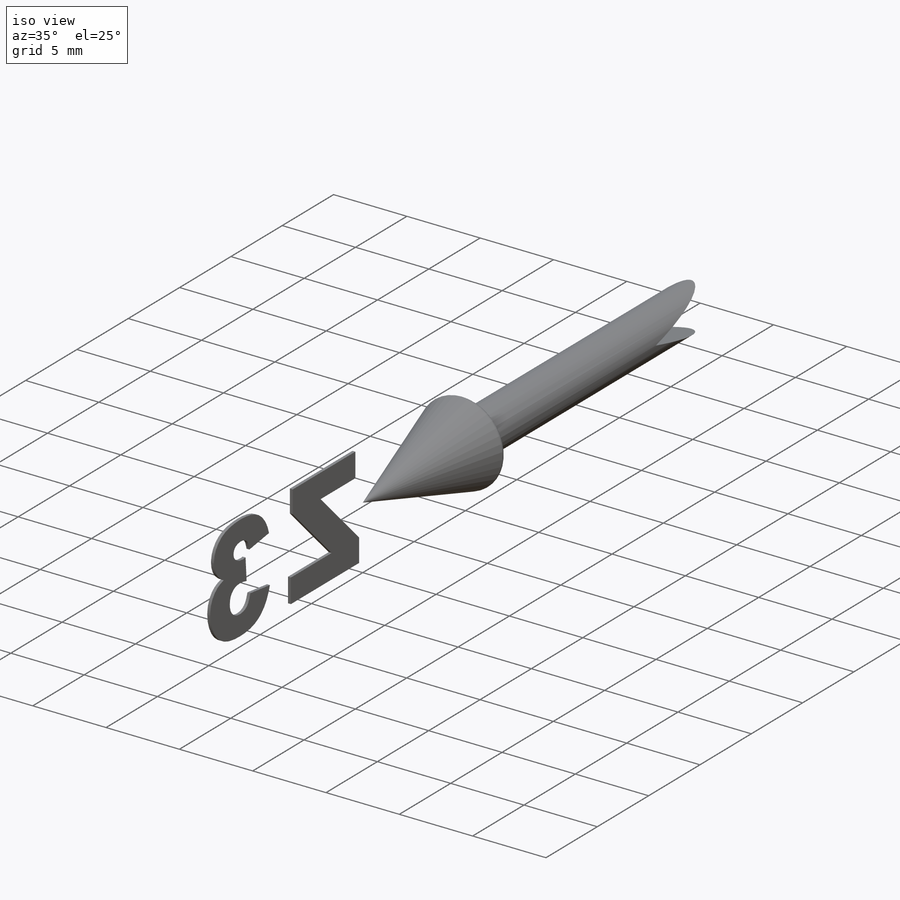
[diagram: iso view]
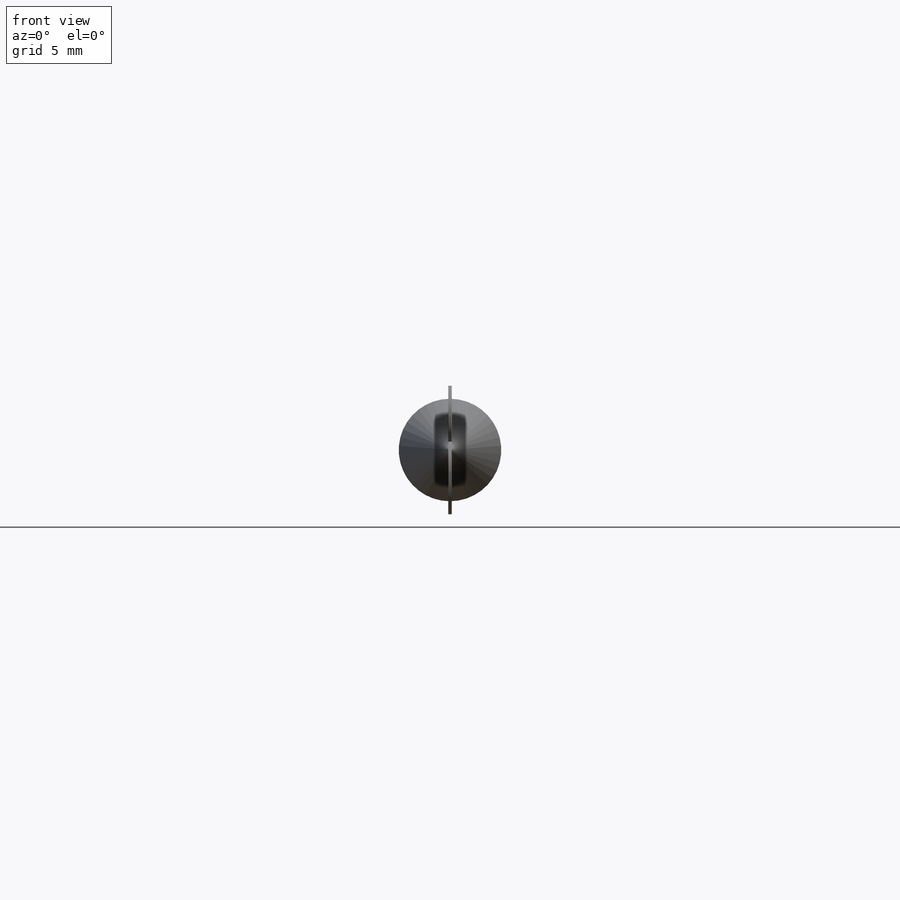
[diagram: front view]
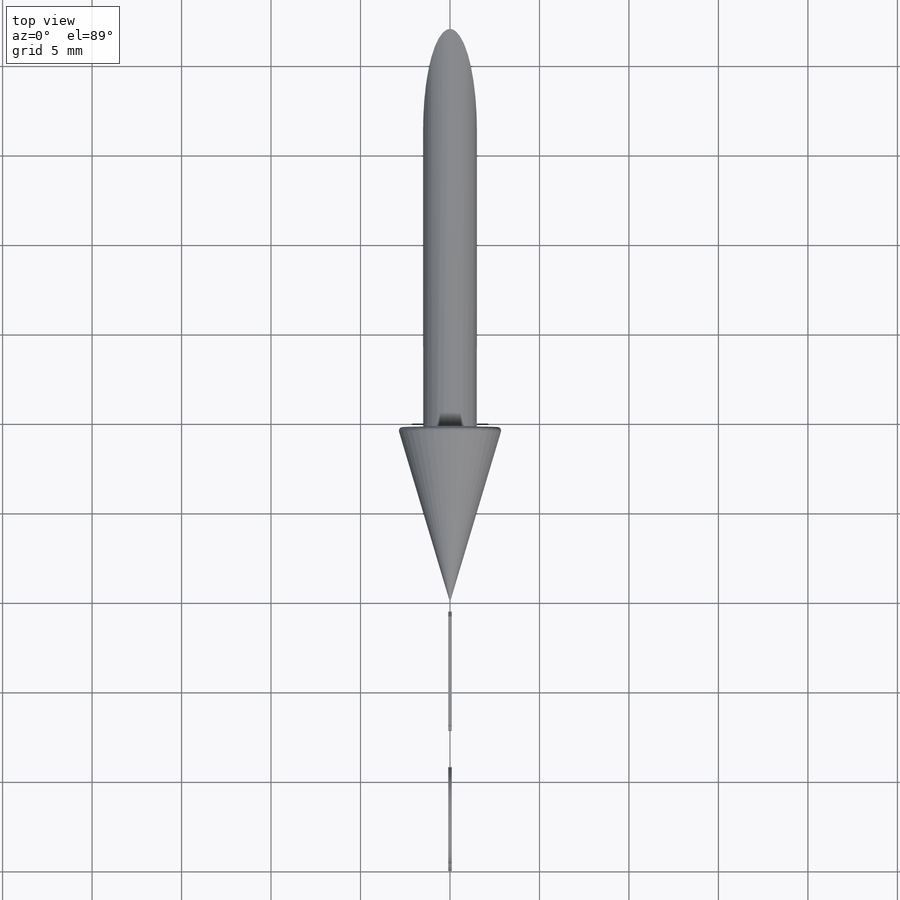
[diagram: top view]
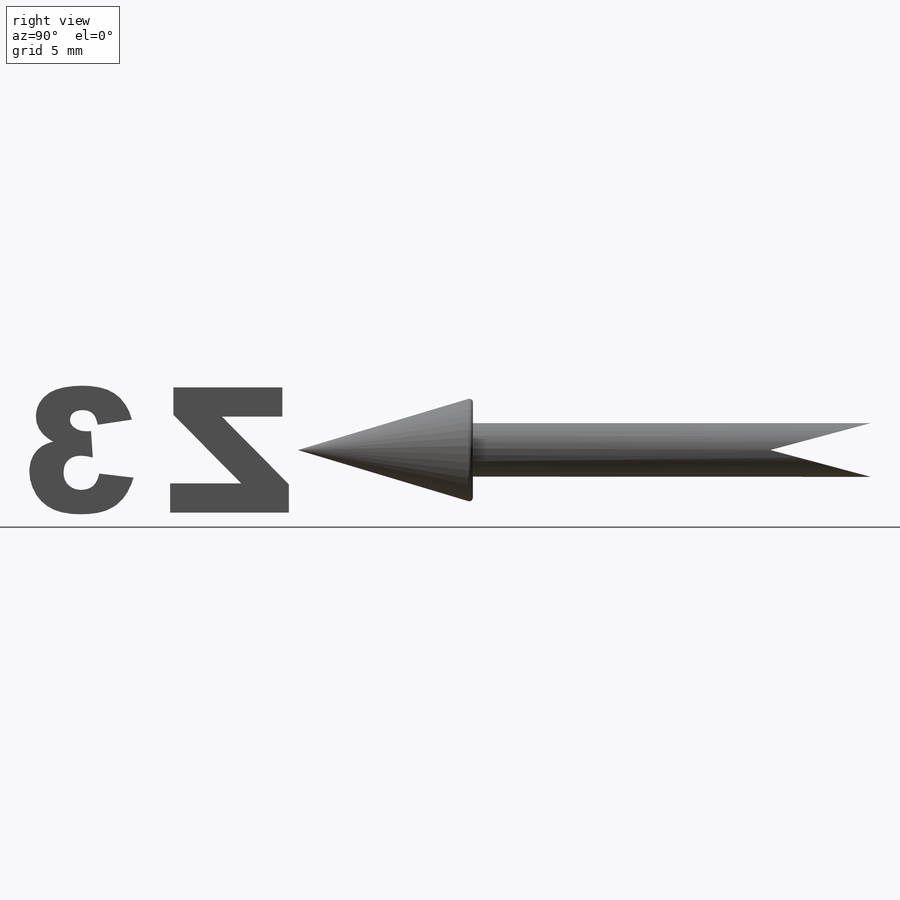
[diagram: right view]
SOLIDWORKS PART (.sldprt)
format: sldprt  version: not decoded by parser v0  size: 32,102,912 bytes
history: native  units: mm
features: sketch x30, extrude x25, plane x4, revolve x2, cut_extrude x2, mirror x2, material x1, pattern_circular x1 + 1 further entry (+14 scaffold rows collapsed; 1 parser-record rows omitted)
feature tree (83):
  scaffold x14  (default folders/planes/origin — collapsed)
  material  "Material <not specified>"
  "Design Table"
  sketch  "Sketch1"  dims[c1.Thickness=10.0mm c1.RoundedRearofHead=1.0mm c1.D2=250.0mm c1.D3=50.0mm c1.D4=15.0mm c1.D5=50.0mm c1.D6=50.0mm c2.D5=50.0mm c2.D6=50.0mm c3.D5=50.0mm c3.D6=50.0mm c4.D5=50.0mm c4.HeadLength=50.0mm c4.Length=200.0mm c5.D5=~14.851447mm c5.UndercutAngle=60.0deg c5.Length=200.0mm c5.TailLength=10.0mm c6.Length=250.0mm c6.Thickness=6.0mm c7.Thickness=10.0mm c7.HeadDiameter=30.0mm c7.D2=~31.500207mm c7.UndercutAngle=30.0deg]
  revolve  "MainShape"  Angle=360deg
  sketch  "Sketch28"  dims[c1.D1=~16.237999mm c2.D1=30.0deg]
  cut_extrude  "TailShape"  [1 undecoded]
  sketch  "Sketch37"  dims[D1=3.5mm D2=22.6mm]
  extrude  "HX"  Depth=0.2mm
  sketch  "Sketch32"  dims[D1=22.6mm D2=3.5mm]
  extrude  "HY"  Depth=0.2mm
  sketch  "Sketch33"  dims[D1=3.5mm D2=22.3mm]
  extrude  "HZ"  Depth=0.2mm
  sketch  "Sketch7"  dims[c1.D1=68.0mm c1.D2=17.5mm c1.D3=68.0mm c1.D4=~36.301616mm c2.D3=~36.301616mm c2.D4=68.0mm c3.D3=~36.301616mm c3.D4=~36.301616mm c4.D3=~36.301616mm c4.D4=~36.301616mm c5.D3=~36.301616mm c5.D4=~36.301616mm c6.D3=~36.301616mm c6.D4=~36.301616mm c7.D3=~36.301616mm c7.D4=~36.301616mm c8.D3=~36.301616mm c8.D4=~36.301616mm c9.D3=~36.301616mm c9.D4=~36.301616mm c10.D3=~36.301616mm c10.D4=68.0mm c11.D3=~36.301616mm c11.D4=~36.301616mm c11.D1=68.0mm]
  sketch  "Sketch10"  dims[Baseline=17.5mm Start=68.0mm]
  extrude  "X"  Depth=1mm Thick=1mm
  sketch  "Sketch11"  dims[D1=68.0mm D2=17.5mm]
  extrude  "Y"  Depth=1mm
  extrude  "Z"  Depth=1mm
  sketch  "Sketch44"  dims[D1=13.0mm D2=3.5mm]
  extrude  "HA"  Depth=0.2mm
  sketch  "Sketch40"  dims[D1=3.5mm D2=13.0mm]
  extrude  "HW"  Depth=0.2mm
  sketch  "Sketch36"  dims[D1=6.8mm D2=3.5mm]
  extrude  "H1"  Depth=0.2mm
  sketch  "Sketch30"  dims[D1=3.5mm D2=6.8mm]
  extrude  "H2"  Depth=0.2mm
  sketch  "Sketch38"  dims[D1=6.8mm D2=3.5mm]
  extrude  "H3"  Depth=0.2mm
  sketch  "Sketch39"  dims[D1=6.8mm D2=3.5mm]
  extrude  "HT"  Depth=0.2mm
  sketch  "Sketch41"  dims[D1=13.8mm D2=3.5mm]
  extrude  "HF1"  Depth=0.2mm
  sketch  "Sketch42"  dims[D1=13.8mm D2=3.5mm]
  extrude  "HF2"  Depth=0.2mm
  sketch  "Sketch43"  dims[D1=3.5mm D2=13.8mm]
  extrude  "HF3"  Depth=0.2mm
  sketch  "Sketch8"  dims[D1=17.5mm D2=34.0mm]
  extrude  "0"  Depth=1mm
  sketch  "Sketch12"  dims[D1=17.5mm D2=34.0mm]
  extrude  "1"  Depth=1mm
  sketch  "Sketch13"  dims[D1=34.0mm D2=17.5mm]
  extrude  "2"  Depth=1mm
  sketch  "Sketch21"  dims[D1=34.0mm D2=17.5mm]
  extrude  "3"  Depth=1mm
  sketch  "Sketch14"  dims[D1=34.0mm D2=17.5mm]
  extrude  "4"  Depth=1mm
  sketch  "Sketch16"  dims[D1=34.0mm D2=17.5mm]
  extrude  "5"  Depth=1mm
  sketch  "Sketch17"  dims[D1=34.0mm D2=17.5mm]
  extrude  "6"  Depth=1mm
  sketch  "Sketch18"  dims[D1=34.0mm D2=17.5mm]
  extrude  "7"  Depth=1mm
  sketch  "Sketch19"  dims[D1=34.0mm D2=17.5mm]
  extrude  "B"  Depth=1mm
  sketch  "Sketch20"  dims[D1=34.0mm D2=17.5mm]
  extrude  "T"  Depth=1mm
  sketch  "Sketch23"  dims[c1.D1=~1.234313mm c2.D1=60.0deg]
  sketch  "Sketch25"  dims[c1.D1=~31.500207mm c2.D1=12.0deg]
  plane  "TailPlane"
  cut_extrude  "TailAxis"  [1 undecoded]
  sketch  "Sketch26"  dims[D1=~36.062475mm TailCutAngle=15.0deg TailCutWidth=3.0mm]
  revolve  "TailCut"  [1 undecoded]
  pattern_circular  "TailPattern"  Count=4 Angle=360deg
  plane  "ArrowVertexPlane"
  parser-record x1  (decoder bookkeeping rows leaked as tree rows — omitted from the tree; the rows remain in map.json)
  plane  "H_mirrorPlane"  Offset=11.3091mm
  mirror  "H_Mirror"
  plane  "Normal_mirrorPlane"  Offset=34mm
  mirror  "Normal_Mirror"
decode coverage: 57 of 62 modeling features carry decoded parameters; 1 rows unclassified (native names shown)
note: ~ marks probable driven/reference dimensions
note: 3 parameter values undecoded
summary: no parameter record found for 3 features
note: suppression state not decoded; provenance and decode notes live in map.json
